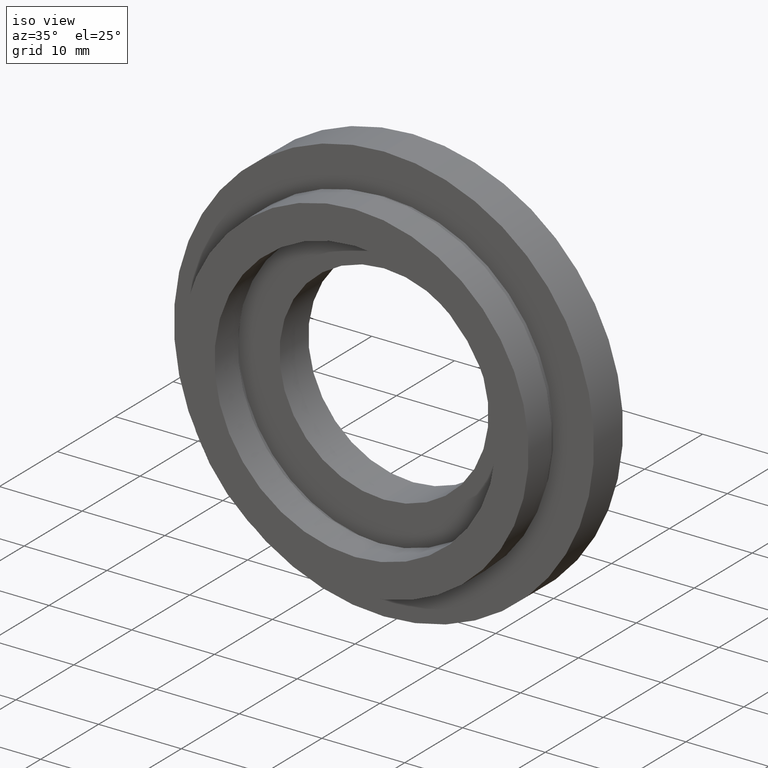
[diagram: clean part render]
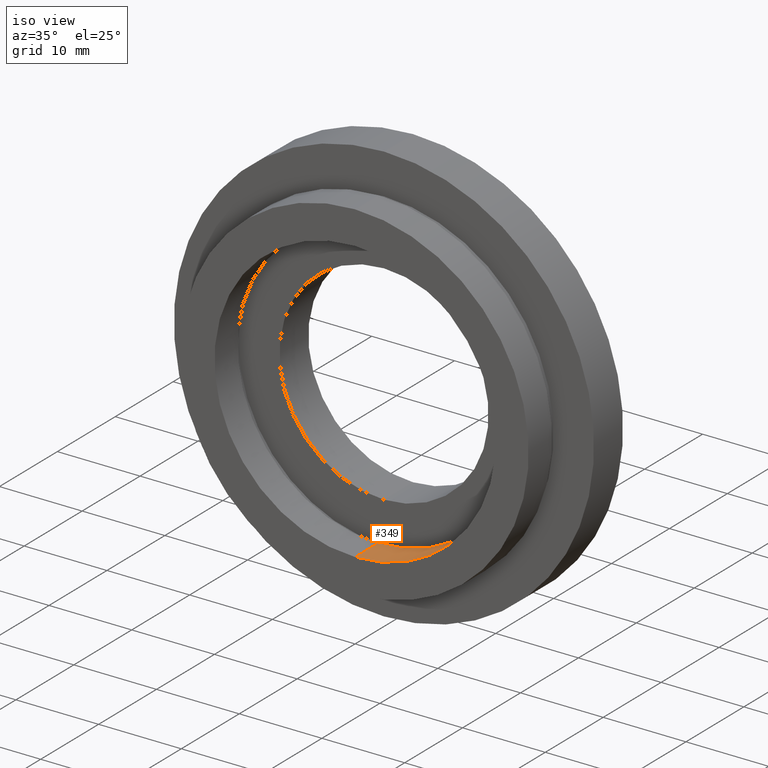
[diagram: same view with one face highlighted and labeled with its STEP entity id]
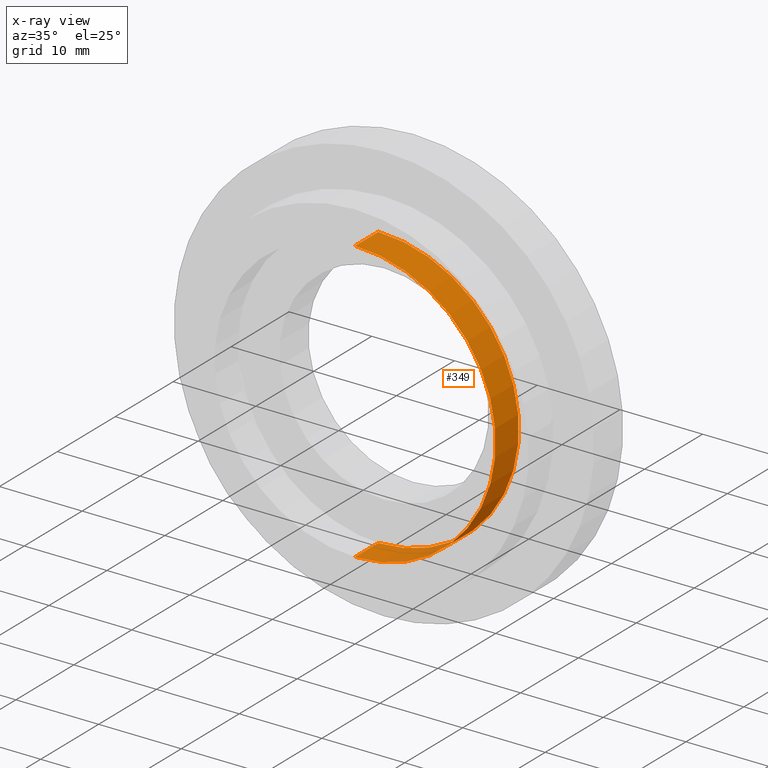
[diagram: x-ray of the same camera — body ghosted, the highlighted face saturated]
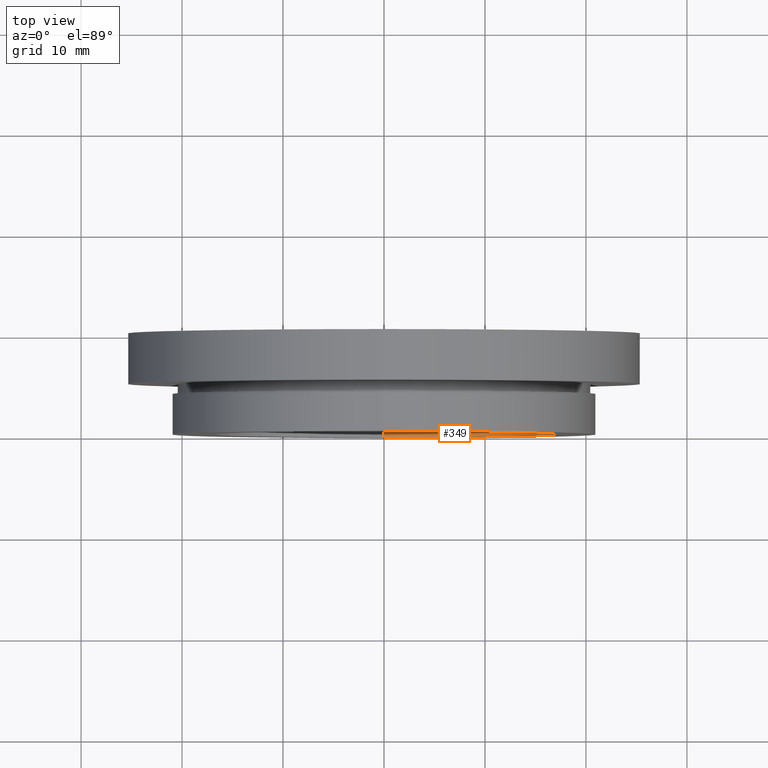
[diagram: same view with one face highlighted and labeled with its STEP entity id]
A machine part, iso view. The second image highlights one B-rep face of the part: STEP entity #349.
The next image is the same camera in x-ray: the body ghosted, the highlighted face saturated — about 0% of this face is hidden behind the body in this view.
A second angle (top view) of the same face is appended — the face is thin or edge-on in the first view.
In plain terms, the highlighted cylindrical surface (partial cylindrical patch) has radius 17 mm, axis along (-0, 1, -0).
Its self-contained STEP definition (entity closure, byte-faithful):
#1 = VERTEX_POINT ( 'NONE', #493 ) ;
#13 = CARTESIAN_POINT ( 'NONE',  ( 0.0000000000000000000, 4.000000000000000000, 0.0000000000000000000 ) ) ;
#20 = DIRECTION ( 'NONE',  ( -0.0000000000000000000, 1.000000000000000000, -0.0000000000000000000 ) ) ;
#25 = AXIS2_PLACEMENT_3D ( 'NONE', #13, #20, #268 ) ;
#31 = EDGE_LOOP ( 'NONE', ( #32, #556, #113, #262 ) ) ;
#32 = ORIENTED_EDGE ( 'NONE', *, *, #158, .F. ) ;
#81 = CARTESIAN_POINT ( 'NONE',  ( 2.081899558550500300E-015, 13.74468085106383300, -17.00000000000000000 ) ) ;
#82 = EDGE_CURVE ( 'NONE', #294, #267, #106, .T. ) ;
#101 = VECTOR ( 'NONE', #171, 1000.000000000000000 ) ;
#106 = CIRCLE ( 'NONE', #280, 17.00000000000000000 ) ;
#113 = ORIENTED_EDGE ( 'NONE', *, *, #348, .T. ) ;
#116 = CARTESIAN_POINT ( 'NONE',  ( 2.081899558550500300E-015, 4.000000000000000000, -17.00000000000000000 ) ) ;
#117 = AXIS2_PLACEMENT_3D ( 'NONE', #476, #557, #621 ) ;
#123 = DIRECTION ( 'NONE',  ( -0.0000000000000000000, 1.000000000000000000, -0.0000000000000000000 ) ) ;
#158 = EDGE_CURVE ( 'NONE', #267, #453, #252, .T. ) ;
#159 = DIRECTION ( 'NONE',  ( 0.0000000000000000000, 0.0000000000000000000, 1.000000000000000000 ) ) ;
#171 = DIRECTION ( 'NONE',  ( -0.0000000000000000000, 1.000000000000000000, -0.0000000000000000000 ) ) ;
#177 = CARTESIAN_POINT ( 'NONE',  ( 0.0000000000000000000, 0.0000000000000000000, 17.00000000000000000 ) ) ;
#215 = CARTESIAN_POINT ( 'NONE',  ( 0.0000000000000000000, 0.0000000000000000000, 0.0000000000000000000 ) ) ;
#249 = CARTESIAN_POINT ( 'NONE',  ( 0.0000000000000000000, 13.74468085106383300, 17.00000000000000000 ) ) ;
#252 = LINE ( 'NONE', #81, #101 ) ;
#262 = ORIENTED_EDGE ( 'NONE', *, *, #550, .T. ) ;
#267 = VERTEX_POINT ( 'NONE', #319 ) ;
#268 = DIRECTION ( 'NONE',  ( 0.0000000000000000000, 0.0000000000000000000, 1.000000000000000000 ) ) ;
#280 = AXIS2_PLACEMENT_3D ( 'NONE', #215, #421, #159 ) ;
#294 = VERTEX_POINT ( 'NONE', #177 ) ;
#297 = CIRCLE ( 'NONE', #25, 17.00000000000000000 ) ;
#309 = VECTOR ( 'NONE', #123, 1000.000000000000000 ) ;
#316 = LINE ( 'NONE', #249, #309 ) ;
#319 = CARTESIAN_POINT ( 'NONE',  ( 2.081899558550500300E-015, 0.0000000000000000000, -17.00000000000000000 ) ) ;
#325 = FACE_OUTER_BOUND ( 'NONE', #31, .T. ) ;
#348 = EDGE_CURVE ( 'NONE', #294, #1, #316, .T. ) ;
#349 = ADVANCED_FACE ( 'NONE', ( #325 ), #388, .F. ) ;
#388 = CYLINDRICAL_SURFACE ( 'NONE', #117, 17.00000000000000000 ) ;
#421 = DIRECTION ( 'NONE',  ( -0.0000000000000000000, 1.000000000000000000, -0.0000000000000000000 ) ) ;
#453 = VERTEX_POINT ( 'NONE', #116 ) ;
#476 = CARTESIAN_POINT ( 'NONE',  ( 0.0000000000000000000, 13.74468085106383300, 0.0000000000000000000 ) ) ;
#493 = CARTESIAN_POINT ( 'NONE',  ( 0.0000000000000000000, 4.000000000000000000, 17.00000000000000000 ) ) ;
#550 = EDGE_CURVE ( 'NONE', #1, #453, #297, .T. ) ;
#556 = ORIENTED_EDGE ( 'NONE', *, *, #82, .F. ) ;
#557 = DIRECTION ( 'NONE',  ( -0.0000000000000000000, 1.000000000000000000, -0.0000000000000000000 ) ) ;
#621 = DIRECTION ( 'NONE',  ( 0.0000000000000000000, 0.0000000000000000000, 1.000000000000000000 ) ) ;